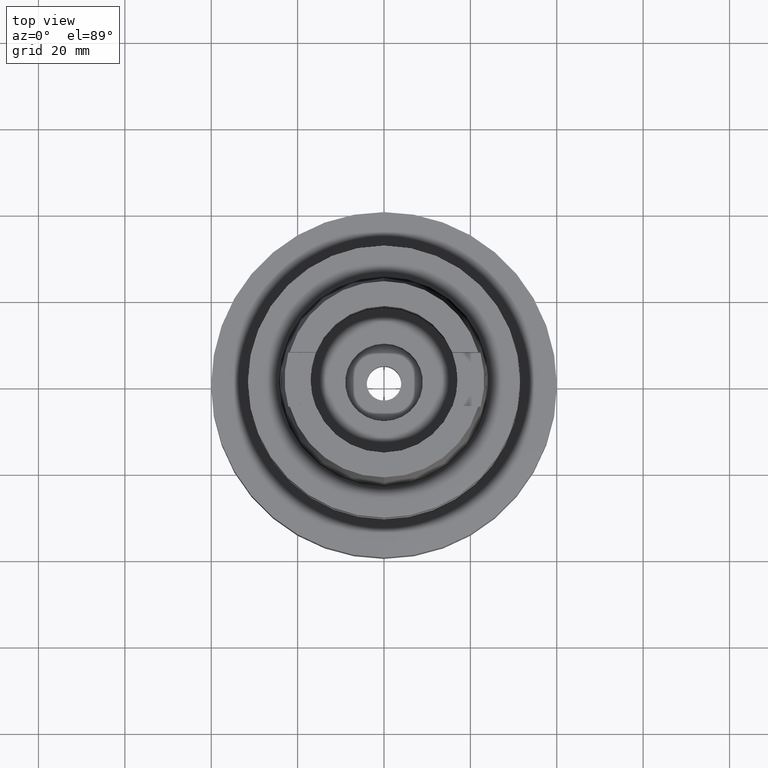
[diagram: clean part render]
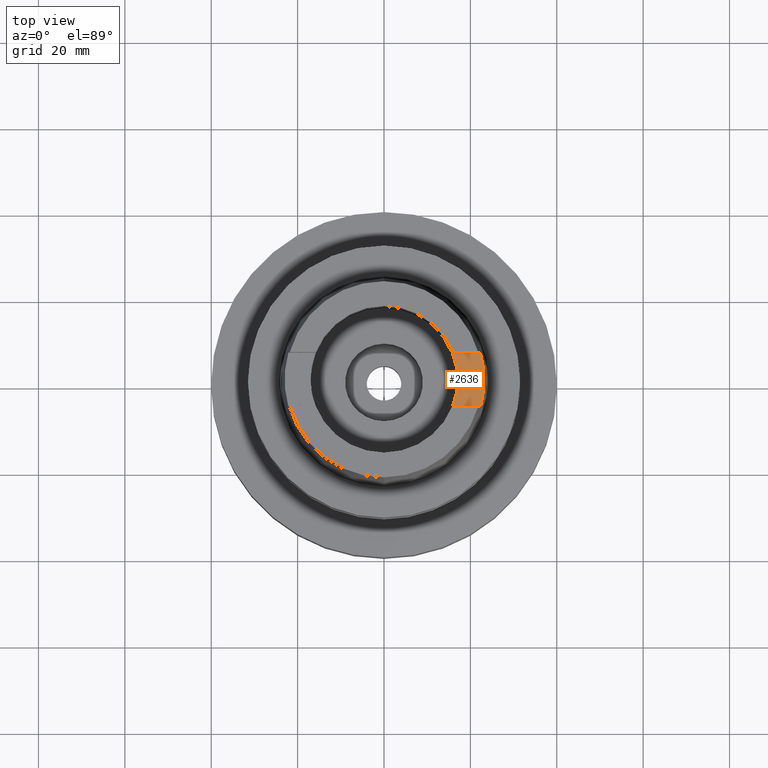
[diagram: same view with one face highlighted and labeled with its STEP entity id]
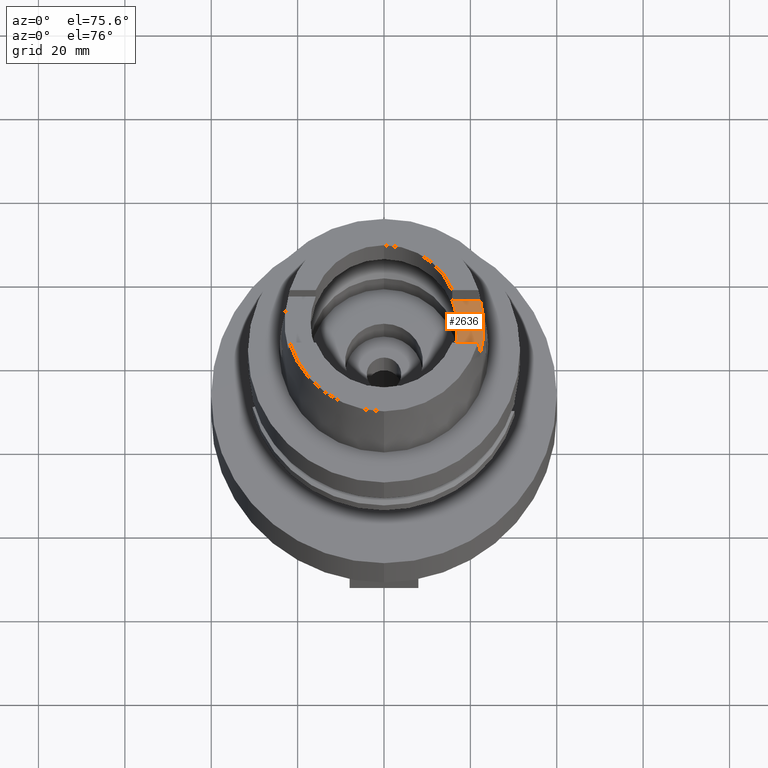
[diagram: same view with one face highlighted and labeled with its STEP entity id]
A machine part, top view. The second image highlights one B-rep face of the part: STEP entity #2636.
A second angle (auxiliary view) of the same face is appended — the face is thin or edge-on in the first view.
In plain terms, the highlighted planar face has unit normal (0, 0, -1).
Its self-contained STEP definition (entity closure, byte-faithful):
#136=DIRECTION('',(1.E0,5.138632012550E-14,0.E0));
#137=VECTOR('',#136,6.550763320748E0);
#138=CARTESIAN_POINT('',(1.580149043603E1,-6.27E0,2.2E1));
#139=LINE('',#138,#137);
#143=CARTESIAN_POINT('',(0.E0,0.E0,2.2E1));
#144=DIRECTION('',(0.E0,0.E0,1.E0));
#145=DIRECTION('',(9.294994374136E-1,-3.688235294118E-1,0.E0));
#146=AXIS2_PLACEMENT_3D('',#143,#144,#145);
#151=DIRECTION('',(1.E0,-5.003048054435E-14,0.E0));
#152=VECTOR('',#151,6.550763320748E0);
#153=CARTESIAN_POINT('',(1.580149043603E1,6.27E0,2.2E1));
#154=LINE('',#153,#152);
#158=CARTESIAN_POINT('',(0.E0,0.E0,2.2E1));
#159=DIRECTION('',(0.E0,0.E0,-1.E0));
#160=DIRECTION('',(9.628367587079E-1,2.700840167076E-1,0.E0));
#161=AXIS2_PLACEMENT_3D('',#158,#159,#160);
#282=CARTESIAN_POINT('',(2.235225375678E1,-6.27E0,2.2E1));
#2210=VERTEX_POINT('',#282);
#2211=CARTESIAN_POINT('',(2.235225375678E1,6.27E0,2.2E1));
#2212=VERTEX_POINT('',#2211);
#2215=CARTESIAN_POINT('',(1.580149043603E1,-6.27E0,2.2E1));
#2216=VERTEX_POINT('',#2215);
#2217=CARTESIAN_POINT('',(1.580149043603E1,6.27E0,2.2E1));
#2218=VERTEX_POINT('',#2217);
#2623=CARTESIAN_POINT('',(3.15E1,-6.27E0,2.2E1));
#2624=DIRECTION('',(0.E0,0.E0,-1.E0));
#2625=DIRECTION('',(0.E0,1.E0,0.E0));
#2626=AXIS2_PLACEMENT_3D('',#2623,#2624,#2625);
#2627=PLANE('',#2626);
#2628=ORIENTED_EDGE('',*,*,#2604,.T.);
#2630=ORIENTED_EDGE('',*,*,#2629,.T.);
#2632=ORIENTED_EDGE('',*,*,#2631,.T.);
#2633=ORIENTED_EDGE('',*,*,#2616,.F.);
#2634=EDGE_LOOP('',(#2628,#2630,#2632,#2633));
#2635=FACE_OUTER_BOUND('',#2634,.F.);
#147=CIRCLE('',#146,1.7E1);
#162=CIRCLE('',#161,2.321499834175E1);
#2604=EDGE_CURVE('',#2216,#2218,#147,.T.);
#2616=EDGE_CURVE('',#2216,#2210,#139,.T.);
#2629=EDGE_CURVE('',#2218,#2212,#154,.T.);
#2631=EDGE_CURVE('',#2212,#2210,#162,.T.);
#2636=ADVANCED_FACE('',(#2635),#2627,.F.);